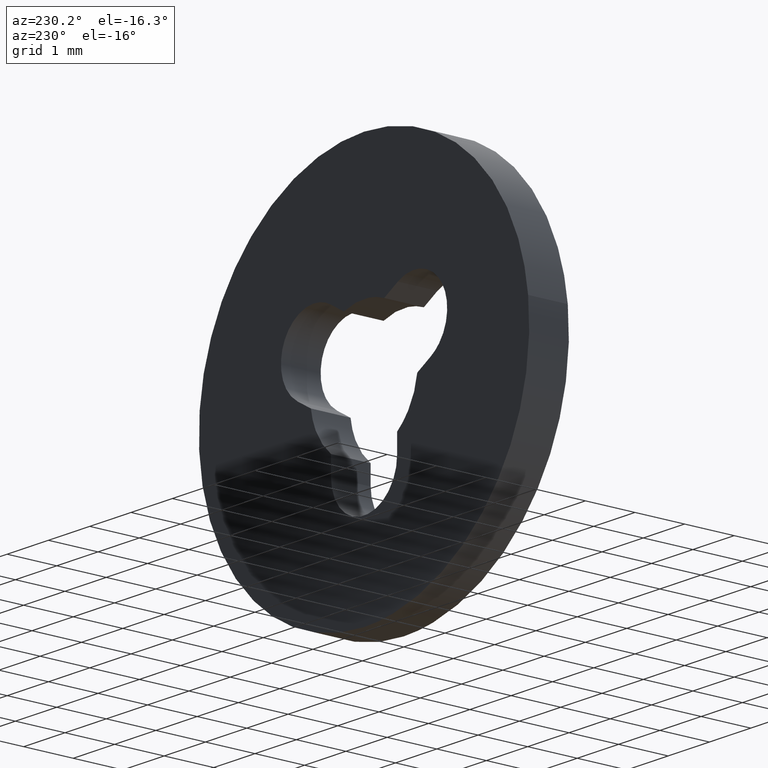
[diagram: clean part render]
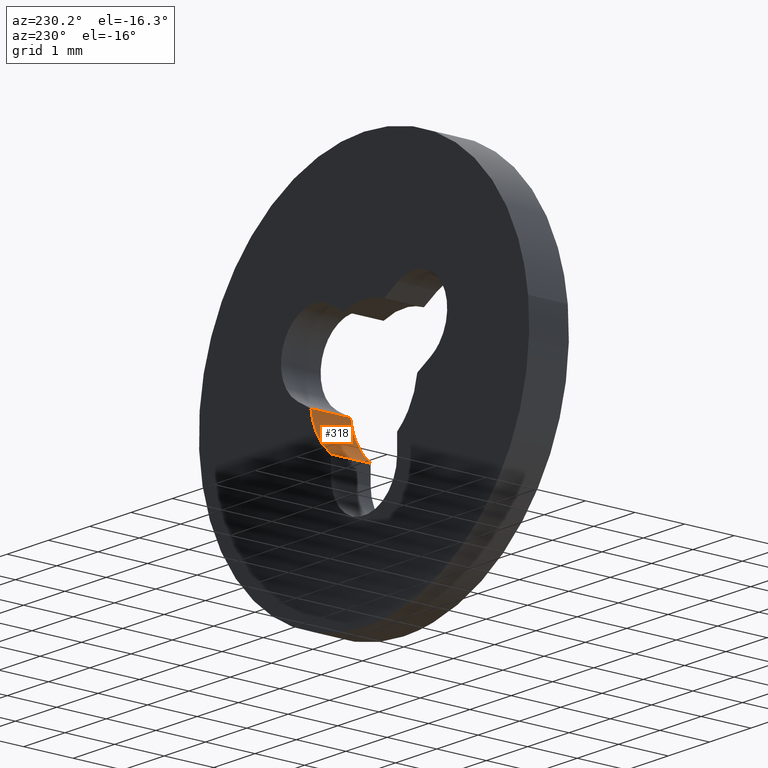
[diagram: same view with one face highlighted and labeled with its STEP entity id]
A machine part, auxiliary view. The second image highlights one B-rep face of the part: STEP entity #318.
In plain terms, the highlighted face is a freeform B-spline surface patch.
Its self-contained STEP definition (entity closure, byte-faithful):
#235=CARTESIAN_POINT('',(1.287408869895386,0.0,-0.180494880023472));
#236=VERTEX_POINT('',#235);
#251=CARTESIAN_POINT('',(1.287408869895384,0.800000000000023,-0.180494880023472));
#252=VERTEX_POINT('',#251);
#258=CARTESIAN_POINT('',(1.287408869895384,0.800000000000023,-0.180494880023472));
#259=CARTESIAN_POINT('',(1.287408869895386,0.0,-0.180494880023472));
#260=QUASI_UNIFORM_CURVE('',1,(#258,#259),.UNSPECIFIED.,.F.,.U.);
#261=EDGE_CURVE('',#252,#236,#260,.T.);
#266=CARTESIAN_POINT('',(1.293228380906160,0.820000000000024,-0.132515488977071));
#267=CARTESIAN_POINT('',(1.293228380906160,-0.020500000000001,-0.132515488977071));
#268=CARTESIAN_POINT('',(1.233791128028652,0.820000000000024,-0.712568001310846));
#269=CARTESIAN_POINT('',(1.233791128028652,-0.020500000000001,-0.712568001310846));
#270=CARTESIAN_POINT('',(0.761070607472883,0.820000000000024,-1.053931463825261));
#271=CARTESIAN_POINT('',(0.761070607472883,-0.020500000000001,-1.053931463825261));
#279=(BOUNDED_SURFACE()B_SPLINE_SURFACE(1,2,((#266,#268,#270),(#267,#269,#271)),.UNSPECIFIED.,.F.,.F.,.U.)B_SPLINE_SURFACE_WITH_KNOTS((2,2),(3,3),(0.0,1.0),(0.006691904131323,0.952492191132158),.UNSPECIFIED.)GEOMETRIC_REPRESENTATION_ITEM()RATIONAL_B_SPLINE_SURFACE(((0.998704944893718,0.907803194254828,0.991183809064949),(0.998704944893718,0.907803194254828,0.991183809064949)))REPRESENTATION_ITEM('')SURFACE());
#280=CARTESIAN_POINT('',(0.800000000000010,0.0,-1.024700000000000));
#281=VERTEX_POINT('',#280);
#282=CARTESIAN_POINT('',(0.800000000000010,0.0,-1.024700000000000));
#283=CARTESIAN_POINT('',(1.214413189115295,0.0,-0.701158403634234));
#284=CARTESIAN_POINT('',(1.287408869895386,0.0,-0.180494880023472));
#292=(BOUNDED_CURVE()B_SPLINE_CURVE(2,(#282,#283,#284),.UNSPECIFIED.,.F.,.U.)CURVE()GEOMETRIC_REPRESENTATION_ITEM()QUASI_UNIFORM_CURVE()RATIONAL_B_SPLINE_CURVE((1.0,0.927054981489884,1.0))REPRESENTATION_ITEM(''));
#293=EDGE_CURVE('',#281,#236,#292,.T.);
#294=ORIENTED_EDGE('',*,*,#293,.T.);
#295=ORIENTED_EDGE('',*,*,#261,.F.);
#296=CARTESIAN_POINT('',(0.800000000000010,0.800000000000023,-1.024700000000000));
#297=VERTEX_POINT('',#296);
#298=CARTESIAN_POINT('',(0.800000000000010,0.800000000000023,-1.024700000000000));
#299=CARTESIAN_POINT('',(1.214413189115293,0.800000000000023,-0.701158403634233));
#300=CARTESIAN_POINT('',(1.287408869895384,0.800000000000023,-0.180494880023472));
#308=(BOUNDED_CURVE()B_SPLINE_CURVE(2,(#298,#299,#300),.UNSPECIFIED.,.F.,.U.)CURVE()GEOMETRIC_REPRESENTATION_ITEM()QUASI_UNIFORM_CURVE()RATIONAL_B_SPLINE_CURVE((1.0,0.927054981489884,1.0))REPRESENTATION_ITEM(''));
#309=EDGE_CURVE('',#297,#252,#308,.T.);
#310=ORIENTED_EDGE('',*,*,#309,.F.);
#311=CARTESIAN_POINT('',(0.800000000000010,0.800000000000023,-1.024700000000000));
#312=CARTESIAN_POINT('',(0.800000000000010,0.0,-1.024700000000000));
#313=QUASI_UNIFORM_CURVE('',1,(#311,#312),.UNSPECIFIED.,.F.,.U.);
#314=EDGE_CURVE('',#297,#281,#313,.T.);
#315=ORIENTED_EDGE('',*,*,#314,.T.);
#316=EDGE_LOOP('',(#294,#295,#310,#315));
#317=FACE_OUTER_BOUND('',#316,.T.);
#318=ADVANCED_FACE('',(#317),#279,.F.);